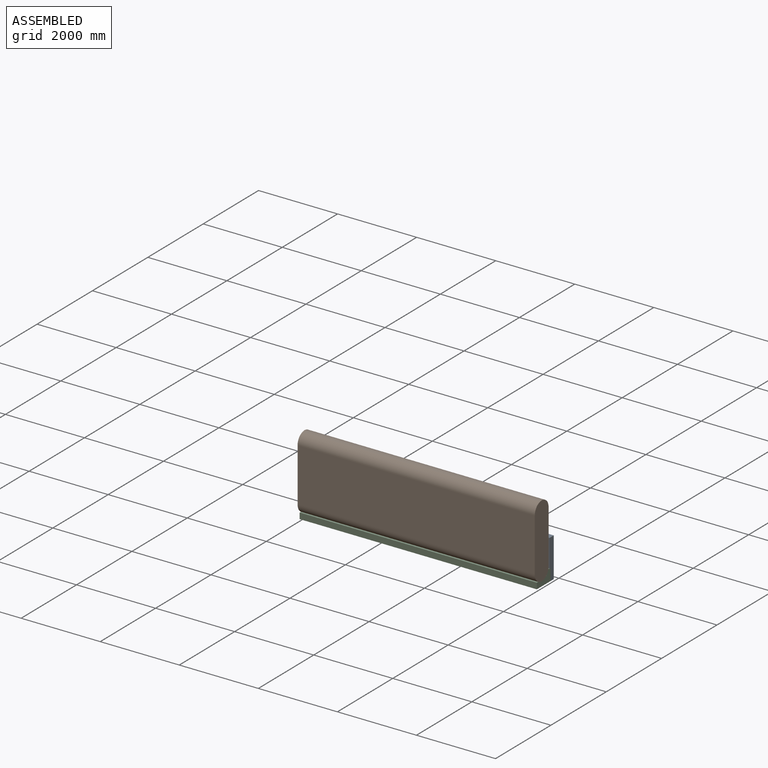
[diagram: assembled view]
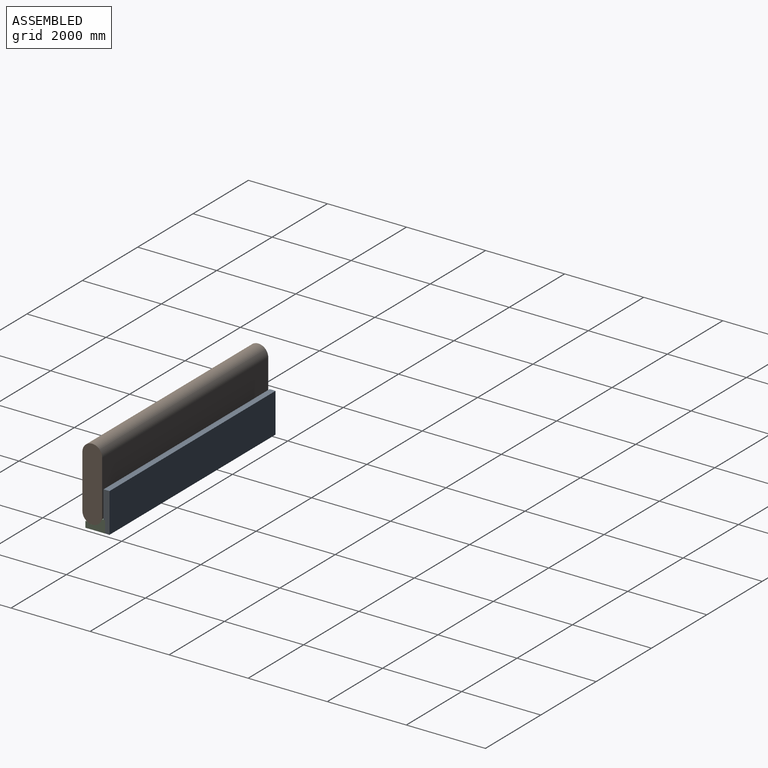
[diagram: assembled view, second angle]
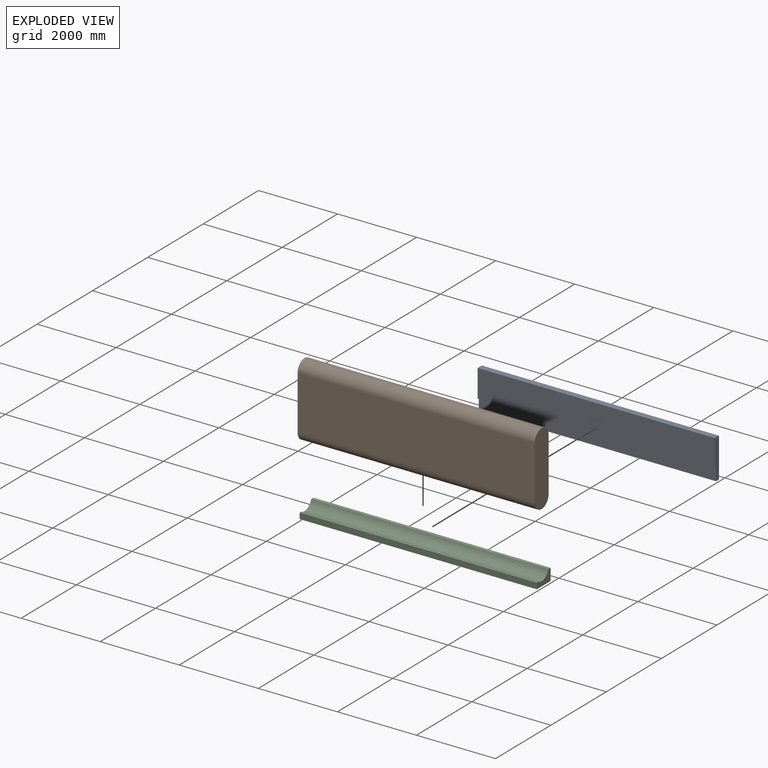
[diagram: exploded view]
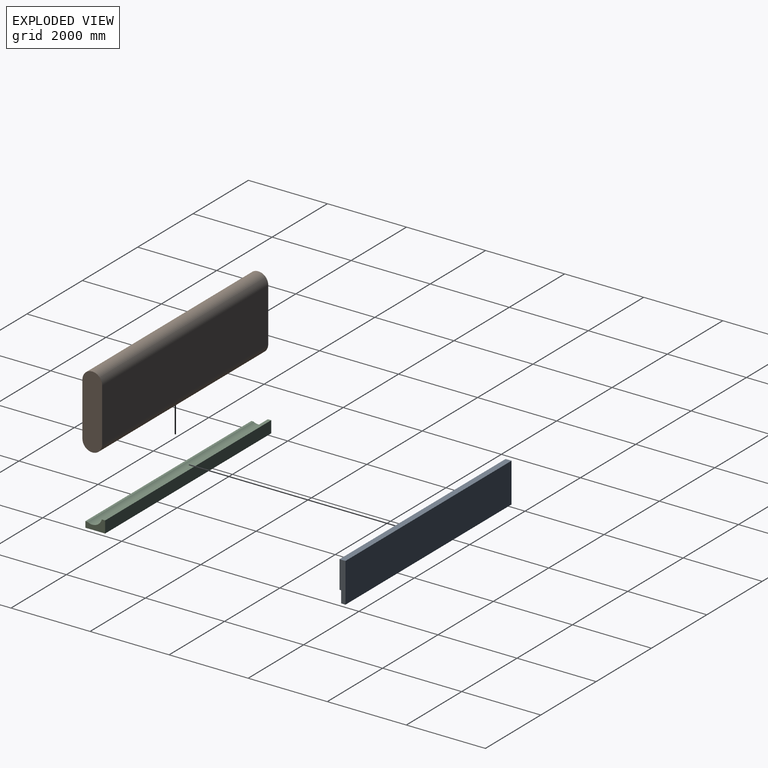
[diagram: exploded view, second angle]
ASSEMBLY  parts=3 mates=2
PART A: 8 faces, bbox 150x6000x1000 mm
  f0: plane 6000x110mm, normal (0,0,-1), area 660000mm2, adj f1,f5,f6,f7
  f1: plane 6000x300mm, normal (1,0,0), area 1800000mm2, adj f0,f2,f6,f7
  f2: plane 6000x40mm, normal (0,0,-1), area 240000mm2, adj f1,f3,f6,f7
  f3: plane 6000x700mm, normal (1,0,0), area 4200000mm2, adj f2,f4,f6,f7
  f4: plane 6000x150mm, normal (0,0,1), area 900000mm2, adj f3,f5,f6,f7
  f5: plane 6000x1000mm, normal (-1,0,0), area 6000000mm2, adj f0,f4,f6,f7
  f6: plane 1000x150mm, normal (0,-1,0), area 138000mm2, adj f0,f1,f2,f3,f4,f5
  f7: plane 1000x150mm, normal (0,1,0), area 138000mm2, adj f0,f1,f2,f3,f4,f5
PART B: 6 faces, bbox 1850x6000x500 mm
  f0: plane 6000x1350mm, normal (0,0,-1), area 8100000mm2, adj f2,f3,f4,f5
  f1: plane 6000x1350mm, normal (0,0,1), area 8100000mm2, adj f2,f3,f4,f5
  f2: plane 1850x500mm, normal (0,-1,0), area 871349.5mm2, adj f0,f1,f4,f5
  f3: plane 1850x500mm, normal (0,1,0), area 871349.5mm2, adj f0,f1,f4,f5
  f4: cylinder r=250mm len=6000mm, axis (0,-1,0), area 4712389mm2, adj f0,f1,f2,f3
  f5: cylinder r=250mm len=6000mm, axis (0,1,0), area 4712389mm2, adj f0,f1,f2,f3
PART C: 8 faces, bbox 500x6000x300 mm
  f0: plane 6000x50mm, normal (0,0,1), area 300000mm2, adj f1,f5,f6,f7
  f1: plane 6000x150mm, normal (-1,0,0), area 900000mm2, adj f0,f2,f6,f7
  f2: plane 6000x500mm, normal (0,0,-1), area 3000000mm2, adj f1,f3,f6,f7
  f3: plane 6000x300mm, normal (1,0,0), area 1800000mm2, adj f2,f4,f6,f7
  f4: plane 6000x84.01mm, normal (0,0,1), area 504051mm2, adj f3,f5,f6,f7
  f5: cylinder r=250mm len=6000mm, axis (0,1,0), area 2737691.4mm2, adj f0,f4,f6,f7
  f6: plane 500x300mm, normal (0,-1,0), area 88260.1mm2, adj f0,f1,f2,f3,f4,f5
  f7: plane 500x300mm, normal (0,1,0), area 88260.1mm2, adj f0,f1,f2,f3,f4,f5
PLACE A rot(axis=(0,0,-1),90deg) t=(-3941.42,3631.95,-708.58)mm
PLACE B rot(axis=(-0.58,0.58,0.58),120deg) t=(-9941.42,3046.95,332.93)mm
PLACE C rot(axis=(0,0,1),90deg) t=(-9941.42,3296.95,-708.58)mm
MATE slider B.f5 <-> C.f5  axis (-1,0,0) through (-6941.42,3296.95,-342.07)mm
MATE fastened C.f3 <-> A.f1  axis (0,1,0) through (-6941.42,3621.95,-558.58)mm
